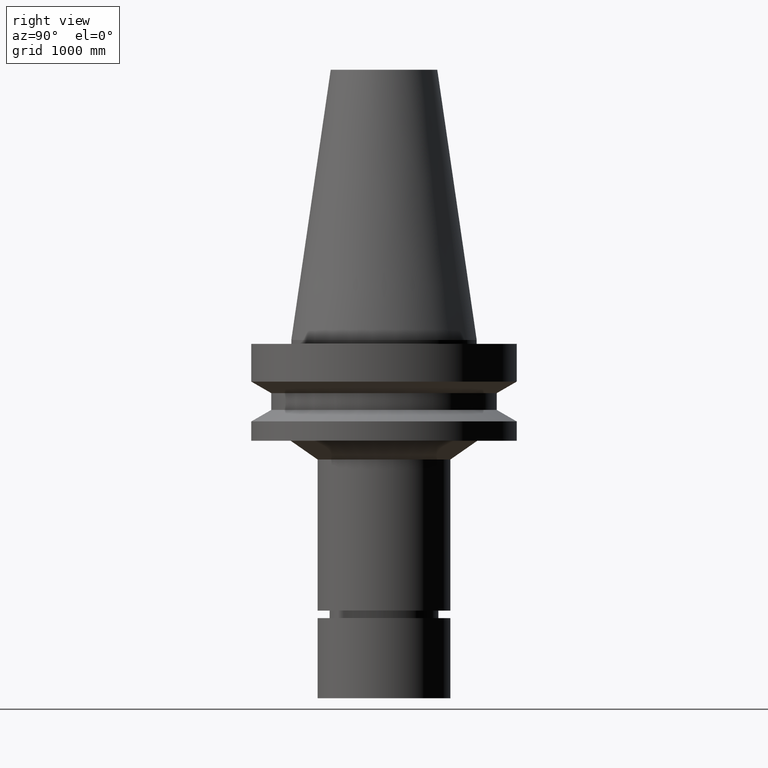
[diagram: clean part render]
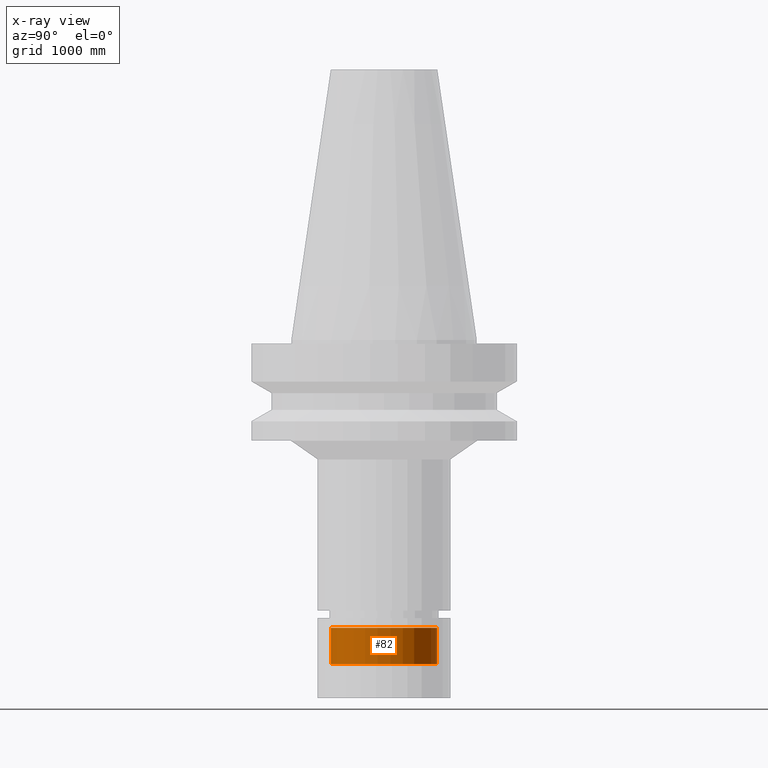
[diagram: x-ray — body ghosted, one internal face saturated and labeled with its STEP entity id]
A machine part, right view, then the same camera in x-ray: the body is ghosted and one INTERNAL B-rep face — a face not visible from any outside direction — is saturated and labeled: STEP entity #82.
In plain terms, the highlighted cylindrical surface (bore or boss wall) has radius 508 mm, axis along (-0, -0, 1).
Its self-contained STEP definition (entity closure, byte-faithful):
#79=EDGE_CURVE('Unnamed[1]',#207,#207,#208,.T.);
#82=ADVANCED_FACE('Unnamed[1]',(#211,#212),#213,.T.);
#122=EDGE_CURVE('Unnamed[1]',#275,#275,#276,.T.);
#207=VERTEX_POINT('',#385);
#208=CIRCLE('',#386,20.0000000000001);
#211=FACE_BOUND('',#390,.T.);
#212=FACE_BOUND('',#391,.T.);
#213=CYLINDRICAL_SURFACE('',#392,20.0);
#275=VERTEX_POINT('',#470);
#276=CIRCLE('',#471,20.0);
#385=CARTESIAN_POINT('',(7.4761468784538E-015,20.0000000000001,-122.094744111673));
#386=AXIS2_PLACEMENT_3D('',#586,#587,#588);
#390=EDGE_LOOP('',(#590));
#391=EDGE_LOOP('',(#591));
#392=AXIS2_PLACEMENT_3D('',#592,#593,#594);
#470=CARTESIAN_POINT('',(6.643718533717E-015,20.0,-108.500157569392));
#471=AXIS2_PLACEMENT_3D('',#663,#664,#665);
#586=CARTESIAN_POINT('',(7.4761468784538E-015,1.64429744551537E-014,-122.094744111673));
#587=DIRECTION('',(-6.12323399573677E-017,-1.52619998477523E-017,1.0));
#588=DIRECTION('',(-5.76168069387501E-033,1.0,1.52619998477523E-017));
#590=ORIENTED_EDGE('',*,*,#122,.F.);
#591=ORIENTED_EDGE('',*,*,#79,.T.);
#592=CARTESIAN_POINT('',(7.0599327060854E-015,1.63392341662845E-014,-115.297450840533));
#593=DIRECTION('',(-6.12323399573676E-017,-1.52619998477523E-017,1.0));
#594=DIRECTION('',(-5.76168069387501E-033,1.0,1.52619998477523E-017));
#663=CARTESIAN_POINT('',(6.643718533717E-015,1.62354938774154E-014,-108.500157569392));
#664=DIRECTION('',(-6.12323399573676E-017,-1.52619998477523E-017,1.0));
#665=DIRECTION('',(-5.7616806938795E-033,1.0,1.52619998477523E-017));